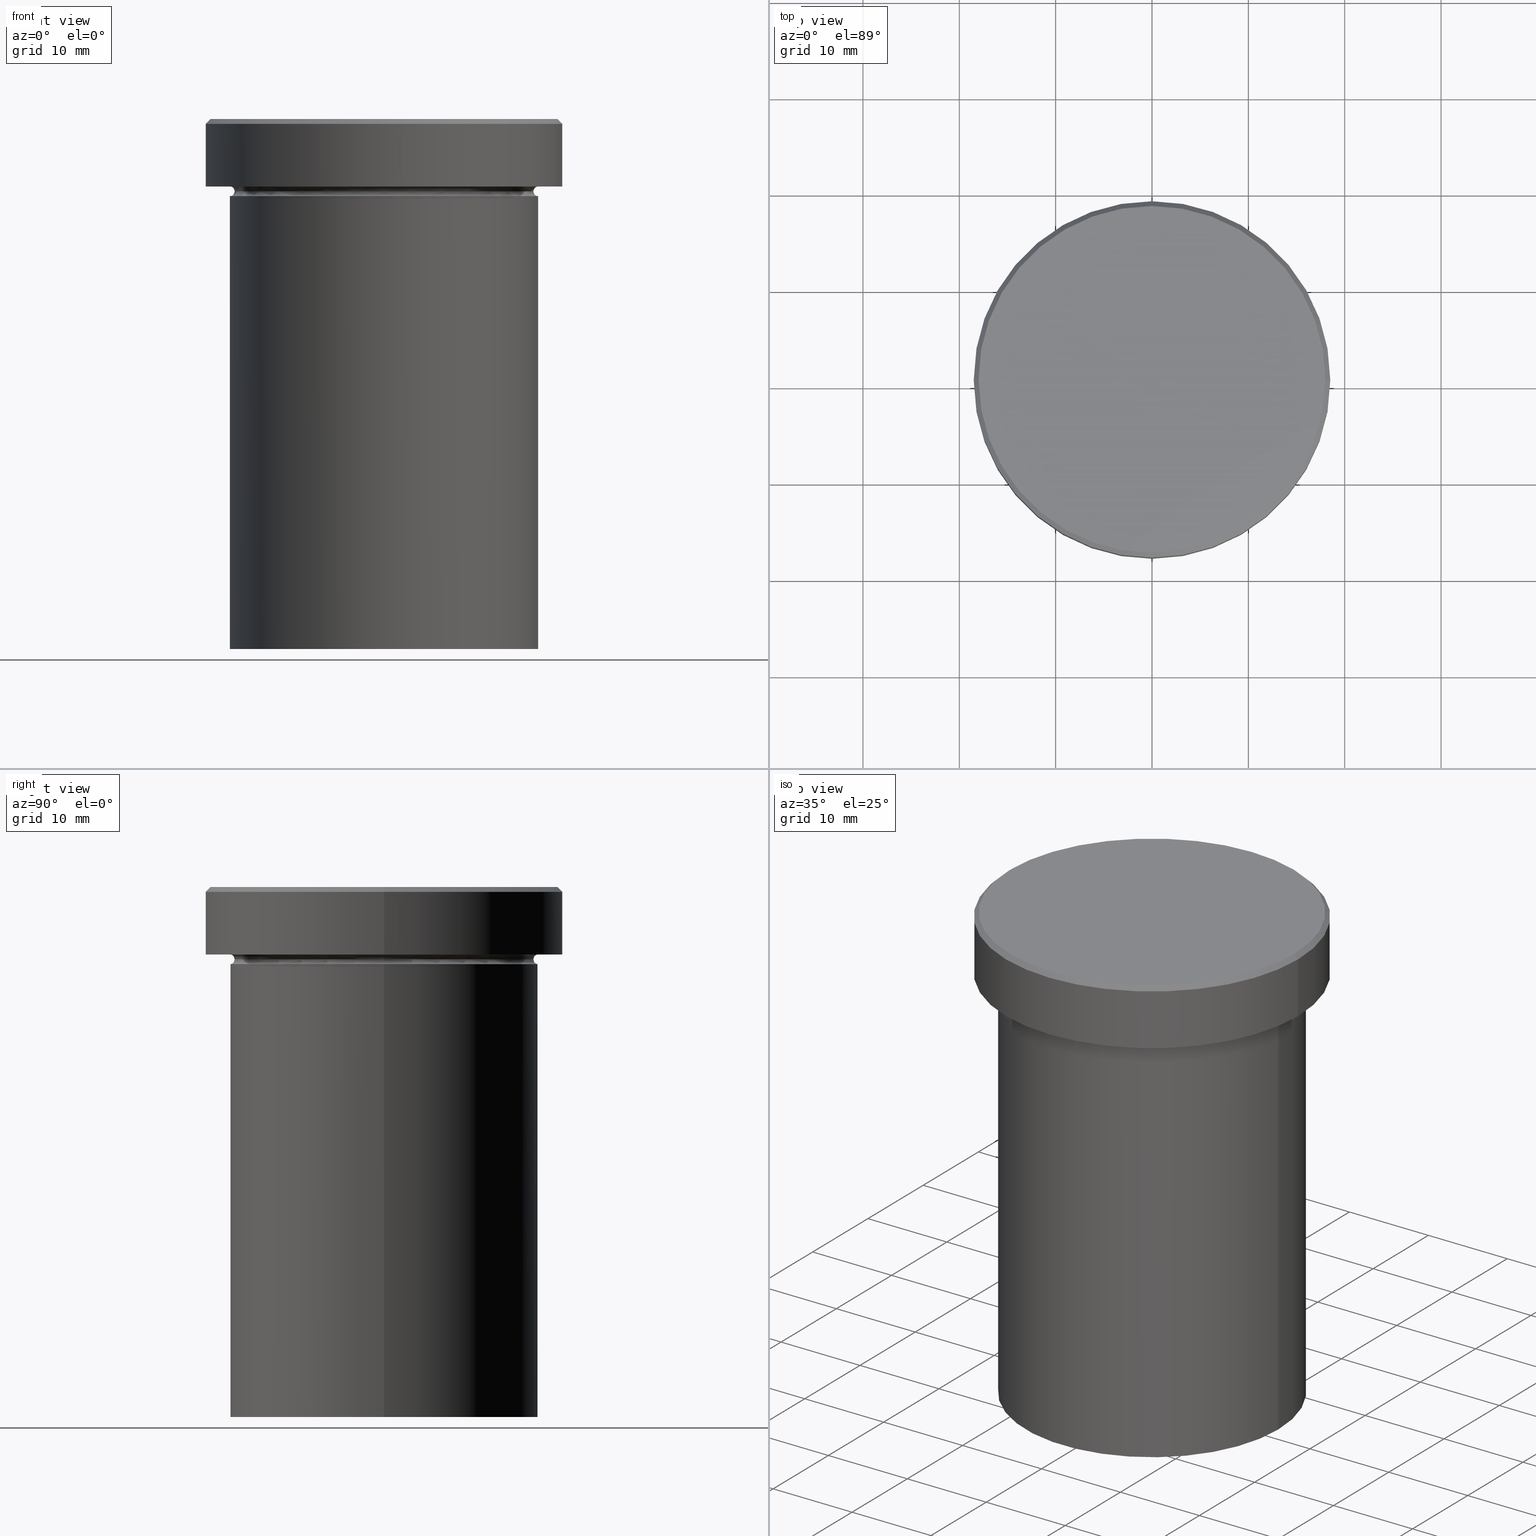
[diagram: canonical four-view strip — front | top / right | iso, engineering-drawing reading convention]
A machine part, canonical four-view strip (front | top / right | iso — engineering-drawing reading convention). The complete STEP part file that produces these views, byte-faithful:
ISO-10303-21;
HEADER;
FILE_DESCRIPTION (( 'STEP AP203' ),
    '1' );
FILE_NAME ('ef6b.STEP',
    '2024-01-02T19:15:23',
    ( '' ),
    ( '' ),
    'SwSTEP 2.0',
    'SolidWorks 2019',
    '' );
FILE_SCHEMA (( 'CONFIG_CONTROL_DESIGN' ));
ENDSEC;

DATA;
#1 = APPROVAL_STATUS ( 'not_yet_approved' ) ;
#2 = DIRECTION ( 'NONE',  ( -1.000000000000000000, 0.000000000000000000, 0.000000000000000000 ) ) ;
#3 = EDGE_CURVE ( 'NONE', #29, #96, #65, .T. ) ;
#4 = CARTESIAN_POINT ( 'NONE',  ( 0.000000000000000000, 0.000000000000000000, -8.000000000000000000 ) ) ;
#5 = ORIENTED_EDGE ( 'NONE', *, *, #3, .T. ) ;
#6 = FACE_OUTER_BOUND ( 'NONE', #60, .T. ) ;
#7 = DIRECTION ( 'NONE',  ( 1.224646799147353207E-16, 1.000000000000000000, 0.000000000000000000 ) ) ;
#8 = EDGE_CURVE ( 'NONE', #58, #96, #328, .T. ) ;
#9 = CC_DESIGN_APPROVAL ( #311, ( #257 ) ) ;
#10 = DIRECTION ( 'NONE',  ( 1.000000000000000000, 0.000000000000000000, 0.000000000000000000 ) ) ;
#11 = APPROVAL_PERSON_ORGANIZATION ( #304, #169, #77 ) ;
#12 = ORIENTED_EDGE ( 'NONE', *, *, #398, .T. ) ;
#13 = EDGE_CURVE ( 'NONE', #58, #209, #313, .T. ) ;
#14 = CYLINDRICAL_SURFACE ( 'NONE', #245, 16.00000000000000000 ) ;
#15 = ORIENTED_EDGE ( 'NONE', *, *, #108, .F. ) ;
#16 = CARTESIAN_POINT ( 'NONE',  ( -18.50000000000000000, 2.265596578422603396E-15, -6.999999999999999112 ) ) ;
#17 = PERSON_AND_ORGANIZATION ( #18, #207 ) ;
#18 = PERSON ( 'NEUR�EN�', 'NEUR�EN�', 'NEUR�EN�', ('NEUR�EN�'), ('NEUR�EN�'), ('NEUR�EN�') ) ;
#19 = DIRECTION ( 'NONE',  ( 0.000000000000000000, 0.000000000000000000, -1.000000000000000000 ) ) ;
#20 = AXIS2_PLACEMENT_3D ( 'NONE', #137, #164, #129 ) ;
#21 =( LENGTH_UNIT ( ) NAMED_UNIT ( * ) SI_UNIT ( .MILLI., .METRE. ) );
#22 = ADVANCED_FACE ( 'NONE', ( #395 ), #147, .T. ) ;
#23 = PERSON_AND_ORGANIZATION ( #18, #207 ) ;
#24 = VERTEX_POINT ( 'NONE', #365 ) ;
#25 = DIRECTION ( 'NONE',  ( 1.000000000000000000, 0.000000000000000000, 0.000000000000000000 ) ) ;
#26 = LOCAL_TIME ( 20, 15, 23.00000000000000000, #142 ) ;
#27 = CONICAL_SURFACE ( 'NONE', #258, 17.99999999999998224, 0.7853981633974517207 ) ;
#28 = EDGE_LOOP ( 'NONE', ( #106, #155, #226, #389 ) ) ;
#29 = VERTEX_POINT ( 'NONE', #233 ) ;
#30 = LINE ( 'NONE', #289, #280 ) ;
#31 = ADVANCED_FACE ( 'NONE', ( #78, #236 ), #51, .T. ) ;
#32 = CLOSED_SHELL ( 'NONE', ( #49, #332, #282, #250, #212, #22, #342, #218, #31, #239, #35, #198, #277 ) ) ;
#33 = DIRECTION ( 'NONE',  ( -1.000000000000000000, 0.000000000000000000, 0.000000000000000000 ) ) ;
#34 = DIRECTION ( 'NONE',  ( 0.000000000000000000, 0.000000000000000000, -1.000000000000000000 ) ) ;
#35 = ADVANCED_FACE ( 'NONE', ( #79 ), #229, .F. ) ;
#36 = CARTESIAN_POINT ( 'NONE',  ( -15.50000000000000000, 1.928818708657081344E-15, -7.500000000000000000 ) ) ;
#37 = CARTESIAN_POINT ( 'NONE',  ( 0.000000000000000000, 0.000000000000000000, -0.5000000000000143219 ) ) ;
#38 = EDGE_CURVE ( 'NONE', #24, #209, #276, .T. ) ;
#39 = ORIENTED_EDGE ( 'NONE', *, *, #108, .T. ) ;
#40 = PERSON_AND_ORGANIZATION ( #18, #207 ) ;
#41 = AXIS2_PLACEMENT_3D ( 'NONE', #320, #256, #230 ) ;
#42 = CARTESIAN_POINT ( 'NONE',  ( 0.000000000000000000, 0.000000000000000000, 0.000000000000000000 ) ) ;
#43 = CARTESIAN_POINT ( 'NONE',  ( -17.99999999999998224, 0.000000000000000000, 0.000000000000000000 ) ) ;
#44 = DIRECTION ( 'NONE',  ( -1.000000000000000000, 0.000000000000000000, 0.000000000000000000 ) ) ;
#45 = DIRECTION ( 'NONE',  ( 1.000000000000000000, 0.000000000000000000, 0.000000000000000000 ) ) ;
#46 = LINE ( 'NONE', #141, #346 ) ;
#47 = APPROVAL_ROLE ( '' ) ;
#48 = APPROVAL_PERSON_ORGANIZATION ( #253, #311, #159 ) ;
#49 = ADVANCED_FACE ( 'NONE', ( #127 ), #27, .T. ) ;
#50 = DATE_AND_TIME ( #337, #183 ) ;
#51 = PLANE ( 'NONE',  #173 ) ;
#52 = CIRCLE ( 'NONE', #55, 16.00000000000000000 ) ;
#53 =( NAMED_UNIT ( * ) SI_UNIT ( $, .STERADIAN. ) SOLID_ANGLE_UNIT ( ) );
#54 = PRODUCT ( 'ef6b', 'ef6b', '', ( #113 ) ) ;
#55 = AXIS2_PLACEMENT_3D ( 'NONE', #263, #216, #154 ) ;
#56 = MANIFOLD_SOLID_BREP ( 'Zkosen�1', #32 ) ;
#57 = DIRECTION ( 'NONE',  ( -0.000000000000000000, -0.000000000000000000, 1.000000000000000000 ) ) ;
#58 = VERTEX_POINT ( 'NONE', #318 ) ;
#59 = VECTOR ( 'NONE', #194, 1000.000000000000000 ) ;
#60 = EDGE_LOOP ( 'NONE', ( #246, #285, #341, #385 ) ) ;
#61 = CARTESIAN_POINT ( 'NONE',  ( 16.00000000000000000, 1.959434878635765131E-15, -6.999999999999999112 ) ) ;
#62 = EDGE_CURVE ( 'NONE', #136, #209, #30, .T. ) ;
#63 = CC_DESIGN_PERSON_AND_ORGANIZATION_ASSIGNMENT ( #40, #292, ( #72 ) ) ;
#64 = DIRECTION ( 'NONE',  ( 1.000000000000000000, 0.000000000000000000, 0.000000000000000000 ) ) ;
#65 = CIRCLE ( 'NONE', #118, 16.00000000000000000 ) ;
#66 = CARTESIAN_POINT ( 'NONE',  ( 17.99999999999998224, 2.234980408443918426E-15, 0.000000000000000000 ) ) ;
#67 = ORIENTED_EDGE ( 'NONE', *, *, #324, .T. ) ;
#68 = CIRCLE ( 'NONE', #167, 0.5000000000000004441 ) ;
#69 = CARTESIAN_POINT ( 'NONE',  ( 17.99999999999998224, 2.204364238465233456E-15, 0.000000000000000000 ) ) ;
#70 = CARTESIAN_POINT ( 'NONE',  ( 0.000000000000000000, 0.000000000000000000, -54.99999999999999289 ) ) ;
#71 = EDGE_LOOP ( 'NONE', ( #288, #343 ) ) ;
#72 = PRODUCT_DEFINITION_FORMATION_WITH_SPECIFIED_SOURCE ( 'LIBOVOLN�', '', #54, .NOT_KNOWN. ) ;
#73 = FACE_OUTER_BOUND ( 'NONE', #100, .T. ) ;
#74 = FACE_OUTER_BOUND ( 'NONE', #28, .T. ) ;
#75 = CIRCLE ( 'NONE', #270, 16.00000000000000000 ) ;
#76 = CARTESIAN_POINT ( 'NONE',  ( -16.00000000000000000, 0.000000000000000000, -7.500000000000000000 ) ) ;
#77 = APPROVAL_ROLE ( '' ) ;
#78 = FACE_BOUND ( 'NONE', #355, .T. ) ;
#79 = FACE_OUTER_BOUND ( 'NONE', #329, .T. ) ;
#80 = ORIENTED_EDGE ( 'NONE', *, *, #175, .T. ) ;
#81 = EDGE_CURVE ( 'NONE', #380, #322, #149, .T. ) ;
#82 = ORIENTED_EDGE ( 'NONE', *, *, #38, .F. ) ;
#83 = CARTESIAN_POINT ( 'NONE',  ( 0.000000000000000000, 0.000000000000000000, -6.999999999999999112 ) ) ;
#84 = EDGE_CURVE ( 'NONE', #185, #58, #408, .T. ) ;
#85 = VERTEX_POINT ( 'NONE', #43 ) ;
#86 = EDGE_LOOP ( 'NONE', ( #222, #402, #122, #376 ) ) ;
#87 = DIRECTION ( 'NONE',  ( 1.000000000000000000, 0.000000000000000000, 0.000000000000000000 ) ) ;
#88 = DIRECTION ( 'NONE',  ( 1.000000000000000000, 0.000000000000000000, 0.000000000000000000 ) ) ;
#89 = ORIENTED_EDGE ( 'NONE', *, *, #312, .T. ) ;
#90 = DESIGN_CONTEXT ( 'detailed design', #241, 'design' ) ;
#91 = CIRCLE ( 'NONE', #331, 18.50000000000000000 ) ;
#92 = COORDINATED_UNIVERSAL_TIME_OFFSET ( 1, 0, .AHEAD. ) ;
#93 = CARTESIAN_POINT ( 'NONE',  ( 16.00000000000000000, 0.000000000000000000, -8.000000000000000000 ) ) ;
#94 = DIRECTION ( 'NONE',  ( 1.000000000000000000, 0.000000000000000000, 0.000000000000000000 ) ) ;
#95 = DIRECTION ( 'NONE',  ( 0.000000000000000000, 0.000000000000000000, -1.000000000000000000 ) ) ;
#96 = VERTEX_POINT ( 'NONE', #61 ) ;
#97 = CIRCLE ( 'NONE', #41, 18.50000000000000000 ) ;
#98 = APPROVAL_DATE_TIME ( #50, #169 ) ;
#99 = CARTESIAN_POINT ( 'NONE',  ( 0.000000000000000000, 0.000000000000000000, 0.000000000000000000 ) ) ;
#100 = EDGE_LOOP ( 'NONE', ( #12, #89, #15, #213 ) ) ;
#101 = CALENDAR_DATE ( 2024, 2, 1 ) ;
#102 = EDGE_CURVE ( 'NONE', #407, #338, #91, .T. ) ;
#103 = CARTESIAN_POINT ( 'NONE',  ( 0.000000000000000000, 0.000000000000000000, 0.000000000000000000 ) ) ;
#104 = APPROVAL_DATE_TIME ( #326, #311 ) ;
#105 = LINE ( 'NONE', #349, #298 ) ;
#106 = ORIENTED_EDGE ( 'NONE', *, *, #175, .F. ) ;
#107 = FACE_OUTER_BOUND ( 'NONE', #314, .T. ) ;
#108 = EDGE_CURVE ( 'NONE', #209, #24, #52, .T. ) ;
#109 = DATE_AND_TIME ( #367, #26 ) ;
#110 = DIRECTION ( 'NONE',  ( -1.000000000000000000, 0.000000000000000000, -0.000000000000000000 ) ) ;
#111 = DIRECTION ( 'NONE',  ( -0.000000000000000000, -0.000000000000000000, 1.000000000000000000 ) ) ;
#112 = CARTESIAN_POINT ( 'NONE',  ( 0.000000000000000000, 16.00000000000000000, -54.99999999999999289 ) ) ;
#113 = MECHANICAL_CONTEXT ( 'NONE', #315, 'mechanical' ) ;
#114 = DIRECTION ( 'NONE',  ( -1.000000000000000000, -1.224646799147349509E-16, 0.000000000000000000 ) ) ;
#115 = CIRCLE ( 'NONE', #354, 0.5000000000000004441 ) ;
#116 = DIRECTION ( 'NONE',  ( -1.224646799147353207E-16, 1.000000000000000000, 0.000000000000000000 ) ) ;
#117 = CC_DESIGN_SECURITY_CLASSIFICATION ( #257, ( #72 ) ) ;
#118 = AXIS2_PLACEMENT_3D ( 'NONE', #278, #272, #178 ) ;
#119 = DIRECTION ( 'NONE',  ( -1.000000000000000000, 0.000000000000000000, 0.000000000000000000 ) ) ;
#120 = CONICAL_SURFACE ( 'NONE', #176, 17.99999999999998224, 0.7853981633974517207 ) ;
#121 = ORIENTED_EDGE ( 'NONE', *, *, #84, .F. ) ;
#122 = ORIENTED_EDGE ( 'NONE', *, *, #3, .F. ) ;
#123 = ORIENTED_EDGE ( 'NONE', *, *, #166, .T. ) ;
#124 = LOCAL_TIME ( 20, 15, 23.00000000000000000, #92 ) ;
#125 = CARTESIAN_POINT ( 'NONE',  ( 0.000000000000000000, 0.000000000000000000, -7.500000000000000000 ) ) ;
#126 = UNCERTAINTY_MEASURE_WITH_UNIT (LENGTH_MEASURE( 1.000000000000000082E-05 ), #21, 'distance_accuracy_value', 'NONE');
#127 = FACE_OUTER_BOUND ( 'NONE', #255, .T. ) ;
#128 = COORDINATED_UNIVERSAL_TIME_OFFSET ( 1, 0, .AHEAD. ) ;
#129 = DIRECTION ( 'NONE',  ( 1.000000000000000000, 0.000000000000000000, 0.000000000000000000 ) ) ;
#130 = CARTESIAN_POINT ( 'NONE',  ( 0.000000000000000000, 0.000000000000000000, -7.500000000000000000 ) ) ;
#131 = ORIENTED_EDGE ( 'NONE', *, *, #13, .T. ) ;
#132 = CARTESIAN_POINT ( 'NONE',  ( 0.000000000000000000, 0.000000000000000000, -7.500000000000000000 ) ) ;
#133 = ORIENTED_EDGE ( 'NONE', *, *, #316, .T. ) ;
#134 = CIRCLE ( 'NONE', #382, 18.50000000000000000 ) ;
#135 = CARTESIAN_POINT ( 'NONE',  ( 18.50000000000000000, 0.000000000000000000, -6.999999999999999112 ) ) ;
#136 = VERTEX_POINT ( 'NONE', #247 ) ;
#137 = CARTESIAN_POINT ( 'NONE',  ( 0.000000000000000000, 0.000000000000000000, -7.500000000000000000 ) ) ;
#138 = EDGE_LOOP ( 'NONE', ( #181, #123, #248, #82 ) ) ;
#139 = DIRECTION ( 'NONE',  ( -0.000000000000000000, -0.000000000000000000, 1.000000000000000000 ) ) ;
#140 = EDGE_CURVE ( 'NONE', #96, #29, #287, .T. ) ;
#141 = CARTESIAN_POINT ( 'NONE',  ( -18.50000000000000000, 2.265596578422603396E-15, 0.000000000000000000 ) ) ;
#142 = COORDINATED_UNIVERSAL_TIME_OFFSET ( 1, 0, .AHEAD. ) ;
#143 = EDGE_CURVE ( 'NONE', #58, #185, #251, .T. ) ;
#144 = AXIS2_PLACEMENT_3D ( 'NONE', #112, #234, #110 ) ;
#145 = DATE_TIME_ROLE ( 'creation_date' ) ;
#146 = AXIS2_PLACEMENT_3D ( 'NONE', #99, #227, #45 ) ;
#147 = PLANE ( 'NONE',  #144 ) ;
#148 = LOCAL_TIME ( 20, 15, 23.00000000000000000, #172 ) ;
#149 = CIRCLE ( 'NONE', #308, 18.50000000000000000 ) ;
#150 = AXIS2_PLACEMENT_3D ( 'NONE', #186, #404, #119 ) ;
#151 = EDGE_CURVE ( 'NONE', #380, #338, #286, .T. ) ;
#152 = AXIS2_PLACEMENT_3D ( 'NONE', #70, #111, #211 ) ;
#153 = ORIENTED_EDGE ( 'NONE', *, *, #370, .F. ) ;
#154 = DIRECTION ( 'NONE',  ( 1.000000000000000000, 0.000000000000000000, 0.000000000000000000 ) ) ;
#155 = ORIENTED_EDGE ( 'NONE', *, *, #335, .T. ) ;
#156 = DIRECTION ( 'NONE',  ( -0.000000000000000000, -0.000000000000000000, 1.000000000000000000 ) ) ;
#157 = ORIENTED_EDGE ( 'NONE', *, *, #102, .T. ) ;
#158 = CIRCLE ( 'NONE', #152, 16.00000000000000000 ) ;
#159 = APPROVAL_ROLE ( '' ) ;
#160 = CYLINDRICAL_SURFACE ( 'NONE', #146, 18.50000000000000000 ) ;
#161 = FACE_OUTER_BOUND ( 'NONE', #317, .T. ) ;
#162 = AXIS2_PLACEMENT_3D ( 'NONE', #132, #293, #44 ) ;
#163 = AXIS2_PLACEMENT_3D ( 'NONE', #268, #393, #19 ) ;
#164 = DIRECTION ( 'NONE',  ( -0.000000000000000000, -0.000000000000000000, 1.000000000000000000 ) ) ;
#165 = DIRECTION ( 'NONE',  ( 0.000000000000000000, 0.000000000000000000, -1.000000000000000000 ) ) ;
#166 = EDGE_CURVE ( 'NONE', #325, #136, #75, .T. ) ;
#167 = AXIS2_PLACEMENT_3D ( 'NONE', #76, #301, #34 ) ;
#168 = FACE_OUTER_BOUND ( 'NONE', #279, .T. ) ;
#169 = APPROVAL ( #271, 'NEUR�EN�' ) ;
#170 = DIRECTION ( 'NONE',  ( 1.000000000000000000, 0.000000000000000000, 0.000000000000000000 ) ) ;
#171 = DIRECTION ( 'NONE',  ( -0.000000000000000000, -0.000000000000000000, 1.000000000000000000 ) ) ;
#172 = COORDINATED_UNIVERSAL_TIME_OFFSET ( 1, 0, .AHEAD. ) ;
#173 = AXIS2_PLACEMENT_3D ( 'NONE', #273, #397, #368 ) ;
#174 = DIRECTION ( 'NONE',  ( 0.000000000000000000, 0.000000000000000000, 1.000000000000000000 ) ) ;
#175 = EDGE_CURVE ( 'NONE', #322, #407, #46, .T. ) ;
#176 = AXIS2_PLACEMENT_3D ( 'NONE', #42, #330, #381 ) ;
#177 = EDGE_CURVE ( 'NONE', #185, #29, #68, .T. ) ;
#178 = DIRECTION ( 'NONE',  ( -1.000000000000000000, 0.000000000000000000, 0.000000000000000000 ) ) ;
#179 = CC_DESIGN_PERSON_AND_ORGANIZATION_ASSIGNMENT ( #17, #369, ( #306 ) ) ;
#180 = AXIS2_PLACEMENT_3D ( 'NONE', #409, #196, #2 ) ;
#181 = ORIENTED_EDGE ( 'NONE', *, *, #312, .F. ) ;
#182 = ORIENTED_EDGE ( 'NONE', *, *, #388, .F. ) ;
#183 = LOCAL_TIME ( 20, 15, 23.00000000000000000, #208 ) ;
#184 =( GEOMETRIC_REPRESENTATION_CONTEXT ( 3 ) GLOBAL_UNCERTAINTY_ASSIGNED_CONTEXT ( ( #126 ) ) GLOBAL_UNIT_ASSIGNED_CONTEXT ( ( #21, #232, #53 ) ) REPRESENTATION_CONTEXT ( 'NONE', 'WORKASPACE' ) );
#185 = VERTEX_POINT ( 'NONE', #36 ) ;
#186 = CARTESIAN_POINT ( 'NONE',  ( 0.000000000000000000, 0.000000000000000000, -6.999999999999999112 ) ) ;
#187 = ORIENTED_EDGE ( 'NONE', *, *, #388, .T. ) ;
#188 = DIRECTION ( 'NONE',  ( -0.000000000000000000, -0.000000000000000000, 1.000000000000000000 ) ) ;
#189 = CARTESIAN_POINT ( 'NONE',  ( 0.000000000000000000, 0.000000000000000000, -0.5000000000000143219 ) ) ;
#190 = DIRECTION ( 'NONE',  ( 1.000000000000000000, 0.000000000000000000, 0.000000000000000000 ) ) ;
#191 = TOROIDAL_SURFACE ( 'NONE', #162, 16.00000000000000000, 0.5000000000000000000 ) ;
#192 = EDGE_LOOP ( 'NONE', ( #202, #360 ) ) ;
#193 = PERSON_AND_ORGANIZATION_ROLE ( 'creator' ) ;
#194 = DIRECTION ( 'NONE',  ( -0.000000000000000000, -0.000000000000000000, 1.000000000000000000 ) ) ;
#195 = ORIENTED_EDGE ( 'NONE', *, *, #324, .F. ) ;
#196 = DIRECTION ( 'NONE',  ( 0.000000000000000000, 0.000000000000000000, -1.000000000000000000 ) ) ;
#197 = AXIS2_PLACEMENT_3D ( 'NONE', #310, #57, #87 ) ;
#198 = ADVANCED_FACE ( 'NONE', ( #6 ), #309, .F. ) ;
#199 = DIRECTION ( 'NONE',  ( 0.7071067811865500152, 8.659560562354962440E-17, -0.7071067811865451302 ) ) ;
#200 = ORIENTED_EDGE ( 'NONE', *, *, #38, .T. ) ;
#201 = DIRECTION ( 'NONE',  ( 1.000000000000000000, 0.000000000000000000, 0.000000000000000000 ) ) ;
#202 = ORIENTED_EDGE ( 'NONE', *, *, #398, .F. ) ;
#203 = CC_DESIGN_APPROVAL ( #169, ( #72 ) ) ;
#204 = DIRECTION ( 'NONE',  ( -1.000000000000000000, 1.224646799147349509E-16, 0.000000000000000000 ) ) ;
#205 = AXIS2_PLACEMENT_3D ( 'NONE', #125, #377, #347 ) ;
#206 = DIRECTION ( 'NONE',  ( -0.000000000000000000, -0.000000000000000000, 1.000000000000000000 ) ) ;
#207 = ORGANIZATION ( 'NEUR�EN�', 'NEUR�EN�', '' ) ;
#208 = COORDINATED_UNIVERSAL_TIME_OFFSET ( 1, 0, .AHEAD. ) ;
#209 = VERTEX_POINT ( 'NONE', #93 ) ;
#210 = CC_DESIGN_PERSON_AND_ORGANIZATION_ASSIGNMENT ( #383, #193, ( #72 ) ) ;
#211 = DIRECTION ( 'NONE',  ( 1.000000000000000000, 0.000000000000000000, 0.000000000000000000 ) ) ;
#212 = ADVANCED_FACE ( 'NONE', ( #319 ), #217, .T. ) ;
#213 = ORIENTED_EDGE ( 'NONE', *, *, #62, .F. ) ;
#214 = AXIS2_PLACEMENT_3D ( 'NONE', #323, #206, #170 ) ;
#215 = ORIENTED_EDGE ( 'NONE', *, *, #81, .T. ) ;
#216 = DIRECTION ( 'NONE',  ( -0.000000000000000000, -0.000000000000000000, 1.000000000000000000 ) ) ;
#217 = CYLINDRICAL_SURFACE ( 'NONE', #291, 18.50000000000000000 ) ;
#218 = ADVANCED_FACE ( 'NONE', ( #74 ), #160, .T. ) ;
#219 = EDGE_CURVE ( 'NONE', #185, #24, #115, .T. ) ;
#220 = CARTESIAN_POINT ( 'NONE',  ( -16.00000000000000000, 1.959434878635765131E-15, -7.500000000000000000 ) ) ;
#221 = CARTESIAN_POINT ( 'NONE',  ( 0.000000000000000000, 0.000000000000000000, 0.000000000000000000 ) ) ;
#222 = ORIENTED_EDGE ( 'NONE', *, *, #84, .T. ) ;
#223 = CARTESIAN_POINT ( 'NONE',  ( 18.50000000000000000, 0.000000000000000000, -0.5000000000000143219 ) ) ;
#224 = PERSON_AND_ORGANIZATION ( #18, #207 ) ;
#225 = DIRECTION ( 'NONE',  ( -0.000000000000000000, -0.000000000000000000, 1.000000000000000000 ) ) ;
#226 = ORIENTED_EDGE ( 'NONE', *, *, #151, .T. ) ;
#227 = DIRECTION ( 'NONE',  ( -0.000000000000000000, -0.000000000000000000, 1.000000000000000000 ) ) ;
#228 = ORIENTED_EDGE ( 'NONE', *, *, #102, .F. ) ;
#229 = TOROIDAL_SURFACE ( 'NONE', #403, 16.00000000000000000, 0.5000000000000000000 ) ;
#230 = DIRECTION ( 'NONE',  ( 1.000000000000000000, 0.000000000000000000, 0.000000000000000000 ) ) ;
#231 = CARTESIAN_POINT ( 'NONE',  ( 0.000000000000000000, 0.000000000000000000, -54.99999999999999289 ) ) ;
#232 =( NAMED_UNIT ( * ) PLANE_ANGLE_UNIT ( ) SI_UNIT ( $, .RADIAN. ) );
#233 = CARTESIAN_POINT ( 'NONE',  ( -16.00000000000000000, 0.000000000000000000, -6.999999999999999112 ) ) ;
#234 = DIRECTION ( 'NONE',  ( 0.000000000000000000, 0.000000000000000000, -1.000000000000000000 ) ) ;
#235 = DATE_AND_TIME ( #302, #148 ) ;
#236 = FACE_OUTER_BOUND ( 'NONE', #71, .T. ) ;
#237 = AXIS2_PLACEMENT_3D ( 'NONE', #400, #116, #114 ) ;
#238 = TOROIDAL_SURFACE ( 'NONE', #20, 16.00000000000000000, 0.5000000000000000000 ) ;
#239 = ADVANCED_FACE ( 'NONE', ( #358 ), #390, .T. ) ;
#240 = APPROVAL ( #394, 'NEUR�EN�' ) ;
#241 = APPLICATION_CONTEXT ( 'configuration controlled 3d designs of mechanical parts and assemblies' ) ;
#242 = AXIS2_PLACEMENT_3D ( 'NONE', #103, #225, #357 ) ;
#243 = ORIENTED_EDGE ( 'NONE', *, *, #143, .F. ) ;
#244 = PRODUCT_RELATED_PRODUCT_CATEGORY ( 'detail', '', ( #54 ) ) ;
#245 = AXIS2_PLACEMENT_3D ( 'NONE', #333, #327, #361 ) ;
#246 = ORIENTED_EDGE ( 'NONE', *, *, #8, .F. ) ;
#247 = CARTESIAN_POINT ( 'NONE',  ( 16.00000000000000000, 0.000000000000000000, -54.99999999999999289 ) ) ;
#248 = ORIENTED_EDGE ( 'NONE', *, *, #62, .T. ) ;
#249 = AXIS2_PLACEMENT_3D ( 'NONE', #265, #384, #94 ) ;
#250 = ADVANCED_FACE ( 'NONE', ( #73 ), #14, .T. ) ;
#251 = CIRCLE ( 'NONE', #197, 15.50000000000000000 ) ;
#252 = DIRECTION ( 'NONE',  ( -0.000000000000000000, -0.000000000000000000, 1.000000000000000000 ) ) ;
#253 = PERSON_AND_ORGANIZATION ( #18, #207 ) ;
#254 = LINE ( 'NONE', #387, #59 ) ;
#255 = EDGE_LOOP ( 'NONE', ( #195, #372, #228, #299 ) ) ;
#256 = DIRECTION ( 'NONE',  ( -0.000000000000000000, -0.000000000000000000, 1.000000000000000000 ) ) ;
#257 = SECURITY_CLASSIFICATION ( '', '', #290 ) ;
#258 = AXIS2_PLACEMENT_3D ( 'NONE', #221, #95, #33 ) ;
#259 = ORIENTED_EDGE ( 'NONE', *, *, #13, .F. ) ;
#260 = DATE_AND_TIME ( #386, #307 ) ;
#261 = FACE_OUTER_BOUND ( 'NONE', #86, .T. ) ;
#262 = CC_DESIGN_PERSON_AND_ORGANIZATION_ASSIGNMENT ( #23, #305, ( #54 ) ) ;
#263 = CARTESIAN_POINT ( 'NONE',  ( 0.000000000000000000, 0.000000000000000000, -8.000000000000000000 ) ) ;
#264 = DATE_TIME_ROLE ( 'classification_date' ) ;
#265 = CARTESIAN_POINT ( 'NONE',  ( 0.000000000000000000, 0.000000000000000000, 0.000000000000000000 ) ) ;
#266 = PLANE ( 'NONE',  #249 ) ;
#267 = DIRECTION ( 'NONE',  ( -0.000000000000000000, -0.000000000000000000, 1.000000000000000000 ) ) ;
#268 = CARTESIAN_POINT ( 'NONE',  ( 16.00000000000000000, 0.000000000000000000, -7.500000000000000000 ) ) ;
#269 = CC_DESIGN_DATE_AND_TIME_ASSIGNMENT ( #260, #264, ( #257 ) ) ;
#270 = AXIS2_PLACEMENT_3D ( 'NONE', #231, #171, #334 ) ;
#271 = APPROVAL_STATUS ( 'not_yet_approved' ) ;
#272 = DIRECTION ( 'NONE',  ( -0.000000000000000000, -0.000000000000000000, 1.000000000000000000 ) ) ;
#273 = CARTESIAN_POINT ( 'NONE',  ( 0.000000000000000000, 18.50000000000000000, -6.999999999999999112 ) ) ;
#274 = VECTOR ( 'NONE', #199, 1000.000000000000114 ) ;
#275 = APPLICATION_PROTOCOL_DEFINITION ( 'international standard', 'config_control_design', 1994, #241 ) ;
#276 = CIRCLE ( 'NONE', #281, 16.00000000000000000 ) ;
#277 = ADVANCED_FACE ( 'NONE', ( #107 ), #120, .T. ) ;
#278 = CARTESIAN_POINT ( 'NONE',  ( 0.000000000000000000, 0.000000000000000000, -6.999999999999999112 ) ) ;
#279 = EDGE_LOOP ( 'NONE', ( #187, #67 ) ) ;
#280 = VECTOR ( 'NONE', #252, 1000.000000000000000 ) ;
#281 = AXIS2_PLACEMENT_3D ( 'NONE', #4, #188, #190 ) ;
#282 = ADVANCED_FACE ( 'NONE', ( #161 ), #238, .F. ) ;
#283 = DIRECTION ( 'NONE',  ( 1.000000000000000000, 0.000000000000000000, 0.000000000000000000 ) ) ;
#284 = CC_DESIGN_DATE_AND_TIME_ASSIGNMENT ( #109, #145, ( #306 ) ) ;
#285 = ORIENTED_EDGE ( 'NONE', *, *, #143, .T. ) ;
#286 = LINE ( 'NONE', #391, #321 ) ;
#287 = CIRCLE ( 'NONE', #150, 16.00000000000000000 ) ;
#288 = ORIENTED_EDGE ( 'NONE', *, *, #81, .F. ) ;
#289 = CARTESIAN_POINT ( 'NONE',  ( 16.00000000000000000, 0.000000000000000000, 0.000000000000000000 ) ) ;
#290 = SECURITY_CLASSIFICATION_LEVEL ( 'unclassified' ) ;
#291 = AXIS2_PLACEMENT_3D ( 'NONE', #378, #352, #283 ) ;
#292 = PERSON_AND_ORGANIZATION_ROLE ( 'design_supplier' ) ;
#293 = DIRECTION ( 'NONE',  ( 0.000000000000000000, 0.000000000000000000, -1.000000000000000000 ) ) ;
#294 = DIRECTION ( 'NONE',  ( 0.000000000000000000, 0.000000000000000000, -1.000000000000000000 ) ) ;
#295 = ORIENTED_EDGE ( 'NONE', *, *, #219, .T. ) ;
#296 = PERSON_AND_ORGANIZATION_ROLE ( 'classification_officer' ) ;
#297 = DIRECTION ( 'NONE',  ( -0.7071067811865500152, 0.000000000000000000, -0.7071067811865451302 ) ) ;
#298 = VECTOR ( 'NONE', #297, 1000.000000000000114 ) ;
#299 = ORIENTED_EDGE ( 'NONE', *, *, #316, .F. ) ;
#300 = CARTESIAN_POINT ( 'NONE',  ( -16.00000000000000000, 1.959434878635765131E-15, -54.99999999999999289 ) ) ;
#301 = DIRECTION ( 'NONE',  ( -0.000000000000000000, -1.000000000000000000, -0.000000000000000000 ) ) ;
#302 = CALENDAR_DATE ( 2024, 2, 1 ) ;
#303 = APPROVAL_PERSON_ORGANIZATION ( #392, #240, #47 ) ;
#304 = PERSON_AND_ORGANIZATION ( #18, #207 ) ;
#305 = PERSON_AND_ORGANIZATION_ROLE ( 'design_owner' ) ;
#306 = PRODUCT_DEFINITION ( 'NEZN�M�', '', #72, #90 ) ;
#307 = LOCAL_TIME ( 20, 15, 23.00000000000000000, #128 ) ;
#308 = AXIS2_PLACEMENT_3D ( 'NONE', #83, #156, #88 ) ;
#309 = TOROIDAL_SURFACE ( 'NONE', #180, 16.00000000000000000, 0.5000000000000000000 ) ;
#310 = CARTESIAN_POINT ( 'NONE',  ( 0.000000000000000000, 0.000000000000000000, -7.500000000000000000 ) ) ;
#311 = APPROVAL ( #1, 'NEUR�EN�' ) ;
#312 = EDGE_CURVE ( 'NONE', #325, #24, #254, .T. ) ;
#313 = CIRCLE ( 'NONE', #163, 0.5000000000000004441 ) ;
#314 = EDGE_LOOP ( 'NONE', ( #344, #182, #133, #153 ) ) ;
#315 = APPLICATION_CONTEXT ( 'configuration controlled 3d designs of mechanical parts and assemblies' ) ;
#316 = EDGE_CURVE ( 'NONE', #85, #407, #105, .T. ) ;
#317 = EDGE_LOOP ( 'NONE', ( #121, #295, #200, #259 ) ) ;
#318 = CARTESIAN_POINT ( 'NONE',  ( 15.50000000000000000, 0.000000000000000000, -7.500000000000000000 ) ) ;
#319 = FACE_OUTER_BOUND ( 'NONE', #374, .T. ) ;
#320 = CARTESIAN_POINT ( 'NONE',  ( 0.000000000000000000, 0.000000000000000000, -6.999999999999999112 ) ) ;
#321 = VECTOR ( 'NONE', #267, 1000.000000000000000 ) ;
#322 = VERTEX_POINT ( 'NONE', #16 ) ;
#323 = CARTESIAN_POINT ( 'NONE',  ( 0.000000000000000000, 0.000000000000000000, 0.000000000000000000 ) ) ;
#324 = EDGE_CURVE ( 'NONE', #345, #85, #405, .T. ) ;
#325 = VERTEX_POINT ( 'NONE', #300 ) ;
#326 = DATE_AND_TIME ( #101, #124 ) ;
#327 = DIRECTION ( 'NONE',  ( -0.000000000000000000, -0.000000000000000000, 1.000000000000000000 ) ) ;
#328 = CIRCLE ( 'NONE', #237, 0.5000000000000004441 ) ;
#329 = EDGE_LOOP ( 'NONE', ( #375, #243, #131, #39 ) ) ;
#330 = DIRECTION ( 'NONE',  ( 0.000000000000000000, 0.000000000000000000, -1.000000000000000000 ) ) ;
#331 = AXIS2_PLACEMENT_3D ( 'NONE', #189, #165, #25 ) ;
#332 = ADVANCED_FACE ( 'NONE', ( #261 ), #191, .F. ) ;
#333 = CARTESIAN_POINT ( 'NONE',  ( 0.000000000000000000, 0.000000000000000000, 0.000000000000000000 ) ) ;
#334 = DIRECTION ( 'NONE',  ( 1.000000000000000000, 0.000000000000000000, 0.000000000000000000 ) ) ;
#335 = EDGE_CURVE ( 'NONE', #322, #380, #97, .T. ) ;
#336 = AXIS2_PLACEMENT_3D ( 'NONE', #379, #139, #201 ) ;
#337 = CALENDAR_DATE ( 2024, 2, 1 ) ;
#338 = VERTEX_POINT ( 'NONE', #223 ) ;
#339 = CARTESIAN_POINT ( 'NONE',  ( -18.50000000000000000, 2.265596578422603396E-15, -0.5000000000000143219 ) ) ;
#340 = CIRCLE ( 'NONE', #242, 17.99999999999998224 ) ;
#341 = ORIENTED_EDGE ( 'NONE', *, *, #177, .T. ) ;
#342 = ADVANCED_FACE ( 'NONE', ( #168 ), #266, .T. ) ;
#343 = ORIENTED_EDGE ( 'NONE', *, *, #335, .F. ) ;
#344 = ORIENTED_EDGE ( 'NONE', *, *, #359, .F. ) ;
#345 = VERTEX_POINT ( 'NONE', #66 ) ;
#346 = VECTOR ( 'NONE', #362, 1000.000000000000000 ) ;
#347 = DIRECTION ( 'NONE',  ( 1.000000000000000000, 0.000000000000000000, 0.000000000000000000 ) ) ;
#348 = DIRECTION ( 'NONE',  ( -0.000000000000000000, -0.000000000000000000, 1.000000000000000000 ) ) ;
#349 = CARTESIAN_POINT ( 'NONE',  ( -17.99999999999998224, 0.000000000000000000, 0.000000000000000000 ) ) ;
#350 = CC_DESIGN_APPROVAL ( #240, ( #306 ) ) ;
#351 = ORIENTED_EDGE ( 'NONE', *, *, #151, .F. ) ;
#352 = DIRECTION ( 'NONE',  ( -0.000000000000000000, -0.000000000000000000, 1.000000000000000000 ) ) ;
#353 = LINE ( 'NONE', #69, #274 ) ;
#354 = AXIS2_PLACEMENT_3D ( 'NONE', #220, #7, #204 ) ;
#355 = EDGE_LOOP ( 'NONE', ( #5, #406 ) ) ;
#356 = SHAPE_DEFINITION_REPRESENTATION ( #373, #371 ) ;
#357 = DIRECTION ( 'NONE',  ( 1.000000000000000000, 0.000000000000000000, 0.000000000000000000 ) ) ;
#358 = FACE_OUTER_BOUND ( 'NONE', #138, .T. ) ;
#359 = EDGE_CURVE ( 'NONE', #345, #338, #353, .T. ) ;
#360 = ORIENTED_EDGE ( 'NONE', *, *, #166, .F. ) ;
#361 = DIRECTION ( 'NONE',  ( 1.000000000000000000, 0.000000000000000000, 0.000000000000000000 ) ) ;
#362 = DIRECTION ( 'NONE',  ( -0.000000000000000000, -0.000000000000000000, 1.000000000000000000 ) ) ;
#363 = APPLICATION_PROTOCOL_DEFINITION ( 'international standard', 'config_control_design', 1994, #315 ) ;
#364 = DIRECTION ( 'NONE',  ( 1.000000000000000000, 0.000000000000000000, 0.000000000000000000 ) ) ;
#365 = CARTESIAN_POINT ( 'NONE',  ( -16.00000000000000000, 1.959434878635765131E-15, -8.000000000000000000 ) ) ;
#366 = AXIS2_PLACEMENT_3D ( 'NONE', #396, #174, #364 ) ;
#367 = CALENDAR_DATE ( 2024, 2, 1 ) ;
#368 = DIRECTION ( 'NONE',  ( -1.000000000000000000, 0.000000000000000000, -0.000000000000000000 ) ) ;
#369 = PERSON_AND_ORGANIZATION_ROLE ( 'creator' ) ;
#370 = EDGE_CURVE ( 'NONE', #338, #407, #134, .T. ) ;
#371 = ADVANCED_BREP_SHAPE_REPRESENTATION ( 'ef6b', ( #56, #366 ), #184 ) ;
#372 = ORIENTED_EDGE ( 'NONE', *, *, #359, .T. ) ;
#373 = PRODUCT_DEFINITION_SHAPE ( 'NONE', 'NONE',  #306 ) ;
#374 = EDGE_LOOP ( 'NONE', ( #215, #80, #157, #351 ) ) ;
#375 = ORIENTED_EDGE ( 'NONE', *, *, #219, .F. ) ;
#376 = ORIENTED_EDGE ( 'NONE', *, *, #177, .F. ) ;
#377 = DIRECTION ( 'NONE',  ( -0.000000000000000000, -0.000000000000000000, 1.000000000000000000 ) ) ;
#378 = CARTESIAN_POINT ( 'NONE',  ( 0.000000000000000000, 0.000000000000000000, 0.000000000000000000 ) ) ;
#379 = CARTESIAN_POINT ( 'NONE',  ( 0.000000000000000000, 0.000000000000000000, 0.000000000000000000 ) ) ;
#380 = VERTEX_POINT ( 'NONE', #135 ) ;
#381 = DIRECTION ( 'NONE',  ( -1.000000000000000000, 0.000000000000000000, 0.000000000000000000 ) ) ;
#382 = AXIS2_PLACEMENT_3D ( 'NONE', #37, #294, #10 ) ;
#383 = PERSON_AND_ORGANIZATION ( #18, #207 ) ;
#384 = DIRECTION ( 'NONE',  ( 0.000000000000000000, -0.000000000000000000, 1.000000000000000000 ) ) ;
#385 = ORIENTED_EDGE ( 'NONE', *, *, #140, .F. ) ;
#386 = CALENDAR_DATE ( 2024, 2, 1 ) ;
#387 = CARTESIAN_POINT ( 'NONE',  ( -16.00000000000000000, 1.959434878635765131E-15, 0.000000000000000000 ) ) ;
#388 = EDGE_CURVE ( 'NONE', #85, #345, #340, .T. ) ;
#389 = ORIENTED_EDGE ( 'NONE', *, *, #370, .T. ) ;
#390 = CYLINDRICAL_SURFACE ( 'NONE', #214, 16.00000000000000000 ) ;
#391 = CARTESIAN_POINT ( 'NONE',  ( 18.50000000000000000, 0.000000000000000000, 0.000000000000000000 ) ) ;
#392 = PERSON_AND_ORGANIZATION ( #18, #207 ) ;
#393 = DIRECTION ( 'NONE',  ( 0.000000000000000000, -1.000000000000000000, 0.000000000000000000 ) ) ;
#394 = APPROVAL_STATUS ( 'not_yet_approved' ) ;
#395 = FACE_OUTER_BOUND ( 'NONE', #192, .T. ) ;
#396 = CARTESIAN_POINT ( 'NONE',  ( 0.000000000000000000, 0.000000000000000000, 0.000000000000000000 ) ) ;
#397 = DIRECTION ( 'NONE',  ( 0.000000000000000000, 0.000000000000000000, -1.000000000000000000 ) ) ;
#398 = EDGE_CURVE ( 'NONE', #136, #325, #158, .T. ) ;
#399 = APPROVAL_DATE_TIME ( #235, #240 ) ;
#400 = CARTESIAN_POINT ( 'NONE',  ( 16.00000000000000000, 1.959434878635765131E-15, -7.500000000000000000 ) ) ;
#401 = CC_DESIGN_PERSON_AND_ORGANIZATION_ASSIGNMENT ( #224, #296, ( #257 ) ) ;
#402 = ORIENTED_EDGE ( 'NONE', *, *, #8, .T. ) ;
#403 = AXIS2_PLACEMENT_3D ( 'NONE', #130, #348, #64 ) ;
#404 = DIRECTION ( 'NONE',  ( -0.000000000000000000, -0.000000000000000000, 1.000000000000000000 ) ) ;
#405 = CIRCLE ( 'NONE', #336, 17.99999999999998224 ) ;
#406 = ORIENTED_EDGE ( 'NONE', *, *, #140, .T. ) ;
#407 = VERTEX_POINT ( 'NONE', #339 ) ;
#408 = CIRCLE ( 'NONE', #205, 15.50000000000000000 ) ;
#409 = CARTESIAN_POINT ( 'NONE',  ( 0.000000000000000000, 0.000000000000000000, -7.500000000000000000 ) ) ;
ENDSEC;
END-ISO-10303-21;
